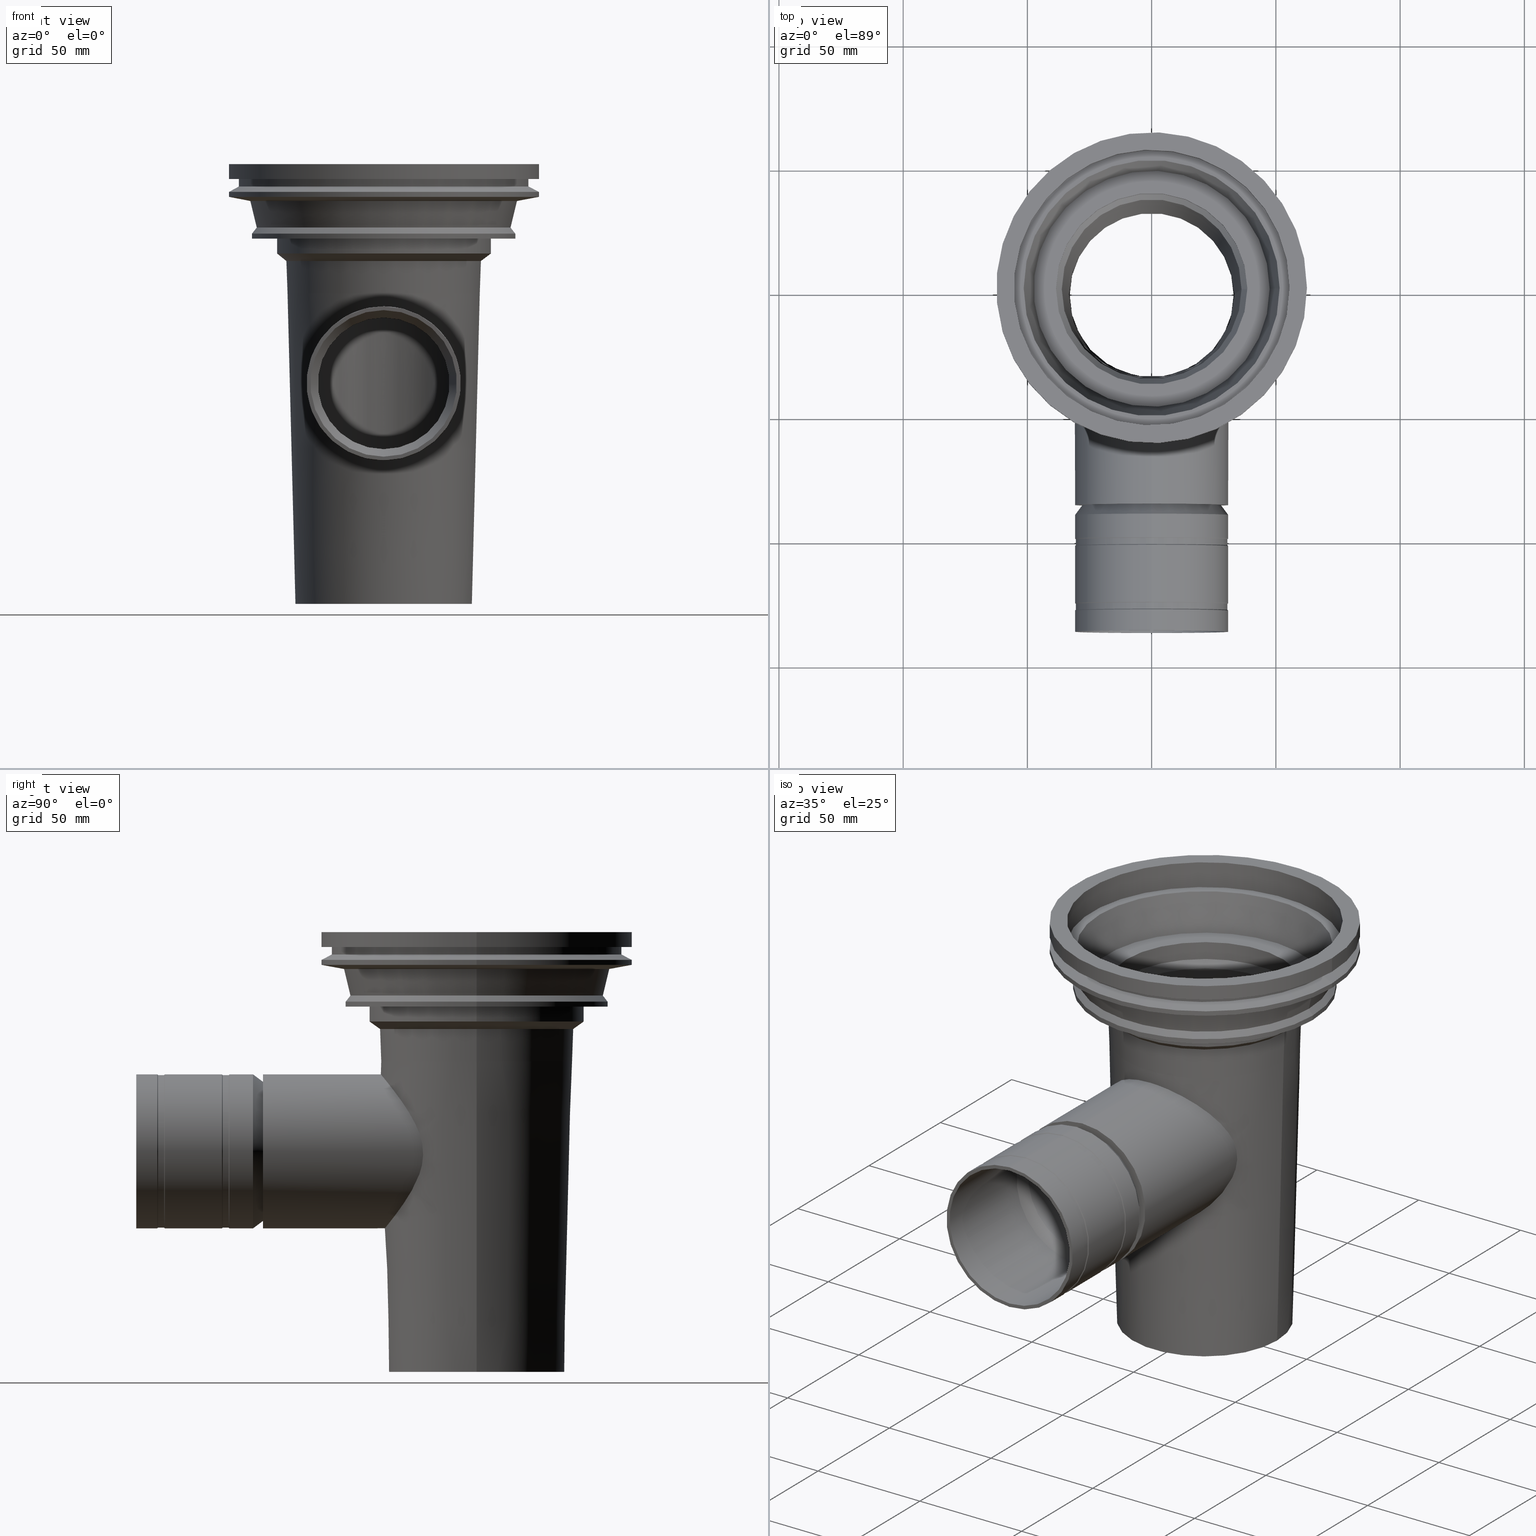
[diagram: canonical four-view strip — front | top / right | iso, engineering-drawing reading convention]
A machine part, canonical four-view strip (front | top / right | iso — engineering-drawing reading convention). The complete STEP part file that produces these views, byte-faithful:
ISO-10303-21;
HEADER;
/* Generated by software containing ST-Developer
 * from STEP Tools, Inc. (www.steptools.com) 
 */
/* OPTION: using custom renumber hook */

FILE_DESCRIPTION(
/* description */ ('STEP AP214'),
/* implementation_level */ '2;1');

FILE_NAME(
/* name */ '482085001(1)',
/* time_stamp */ '2022-12-23T08:20:40+01:00',
/* author */ ('License CC BY-ND 4.0'),
/* organization */ ('CADENAS'),
/* preprocessor_version */ 'ST-DEVELOPER v18.102',
/* originating_system */ 'PARTsolutions',
/* authorisation */ '  ');

FILE_SCHEMA (('AUTOMOTIVE_DESIGN {1 0 10303 214 3 1 1}'));
ENDSEC;

DATA;
#10=PROPERTY_DEFINITION_REPRESENTATION(#14,#12);
#11=PROPERTY_DEFINITION_REPRESENTATION(#15,#13);
#12=REPRESENTATION('',(#16),#986);
#13=REPRESENTATION('',(#17),#986);
#14=PROPERTY_DEFINITION('pmi validation property','',#991);
#15=PROPERTY_DEFINITION('pmi validation property','',#991);
#16=VALUE_REPRESENTATION_ITEM('number of annotations',COUNT_MEASURE(0.));
#17=VALUE_REPRESENTATION_ITEM('number of views',COUNT_MEASURE(0.));
#18=SHAPE_REPRESENTATION_RELATIONSHIP('','',#502,#19);
#19=ADVANCED_BREP_SHAPE_REPRESENTATION('',(#500),#986);
#20=PLANE('',#518);
#21=PLANE('',#525);
#22=PLANE('',#529);
#23=PLANE('',#533);
#24=PLANE('',#537);
#25=PLANE('',#553);
#26=PLANE('',#560);
#27=PLANE('',#564);
#28=PLANE('',#572);
#29=CONICAL_SURFACE('',#512,33.0020779252894,0.0214151899219702);
#30=CONICAL_SURFACE('',#515,38.6793859391097,0.0254294472015564);
#31=CONICAL_SURFACE('',#519,35.6793859584494,0.035691983203284);
#32=CONICAL_SURFACE('',#521,36.1755015473275,0.643502895210306);
#33=CONICAL_SURFACE('',#527,47.4999181723626,0.237521857903909);
#34=CONICAL_SURFACE('',#541,58.252,1.09597950378984);
#35=CONICAL_SURFACE('',#545,62.5,1.3848314949949);
#36=CONICAL_SURFACE('',#547,53.6550744100284,0.237521857903908);
#37=CONICAL_SURFACE('',#549,51.0668891155031,0.665808203050796);
#38=CONICAL_SURFACE('',#557,43.145,0.927293431584588);
#39=CONICAL_SURFACE('',#559,39.143539336086,0.0356919832032839);
#40=CONICAL_SURFACE('',#568,29.5,0.643502895210311);
#41=CONICAL_SURFACE('',#576,28.,0.643502895210311);
#42=CONICAL_SURFACE('',#577,30.7,0.876068018038586);
#43=CONICAL_SURFACE('',#579,34.,0.876068018038613);
#44=CONICAL_SURFACE('',#582,30.7,0.876068018038586);
#45=CONICAL_SURFACE('',#584,34.,0.87606801803861);
#46=B_SPLINE_CURVE_WITH_KNOTS('',3,(#767,#768,#769,#770,#771,#772,#773,
#774,#775,#776,#777,#778,#779,#780,#781,#782,#783,#784,#785,#786,#787,#788,
#789,#790,#791,#792,#793,#794,#795,#796,#797,#798,#799,#800,#801,#802,#803,
#804,#805,#806,#807,#808,#809,#810,#811,#812,#813,#814,#815),
 .UNSPECIFIED.,.T.,.F.,(1,1,1,1,1,1,1,1,1,1,1,1,1,1,1,1,1,1,1,1,1,1,1,1,
1,1,1,1,1,1,1,1,1,1,1,1,1,1,1,1,1,1,1,1,1,1,1,1,1,1,1,1,1),(-0.0115909098213004,
-0.00869318236597527,-0.00579545491065017,0.,0.00579545491065017,0.0115909098213003,
0.0173863647319505,0.0231818196426007,0.0289772745532509,0.031875002008576,
0.034772729463901,0.0405681843745512,0.0463636392852014,0.0521590941958516,
0.0579545491065017,0.0608522765618268,0.0637500040171519,0.0695454589278021,
0.0724431863831272,0.0753409138384523,0.0811363687491024,0.0840340962044275,
0.0869318236597526,0.0927272785704028,0.098522733481053,0.101420460936378,
0.104318188391703,0.107215915847028,0.110113643302353,0.113011370757678,
0.115909098213003,0.118806825668329,0.121704553123654,0.127500008034304,
0.130397735489629,0.133295462944954,0.139090917855604,0.141988645310929,
0.144886372766254,0.147784100221579,0.150681827676905,0.15357955513223,
0.156477282587555,0.162272737498205,0.16517046495353,0.168068192408855,
0.173863647319505,0.17676137477483,0.179659102230155,0.185454557140806,
0.191250012051456,0.197045466962106,0.202840921872756),.UNSPECIFIED.);
#47=B_SPLINE_CURVE_WITH_KNOTS('',3,(#827,#828,#829,#830,#831,#832,#833,
#834,#835,#836,#837,#838,#839,#840,#841,#842,#843,#844,#845,#846,#847,#848,
#849,#850,#851,#852,#853,#854,#855,#856,#857,#858,#859,#860,#861,#862,#863,
#864,#865,#866,#867,#868,#869,#870,#871,#872,#873,#874,#875,#876,#877,#878,
#879,#880),.UNSPECIFIED.,.T.,.F.,(1,1,1,1,1,1,1,1,1,1,1,1,1,1,1,1,1,1,1,
1,1,1,1,1,1,1,1,1,1,1,1,1,1,1,1,1,1,1,1,1,1,1,1,1,1,1,1,1,1,1,1,1,1,1,1,
1,1,1),(-0.0128925396919072,-0.00644626984595356,-0.00322313492297679,0.,
0.00644626984595357,0.0128925396919071,0.0193388095378607,0.0225619444608375,
0.0257850793838143,0.0322313492297679,0.0354544841527446,0.0386776190757214,
0.045123888921675,0.0483470238446518,0.0515701587676286,0.0547932936906054,
0.0580164286135821,0.0612395635365589,0.0644626984595357,0.0709089683054893,
0.0741321032284661,0.0773552381514429,0.0805783730744196,0.0838015079973964,
0.0870246429203732,0.09024777784335,0.0966940476893036,0.0999171826122804,
0.103140317535257,0.109586587381211,0.112809722304187,0.116032857227164,
0.122479127073118,0.125702261996095,0.128925396919071,0.135371666765025,
0.138594801688002,0.141817936610979,0.148264206456932,0.151487341379909,
0.154710476302886,0.161156746148839,0.164379881071816,0.167603015994793,
0.17082615091777,0.174049285840746,0.177272420763723,0.1804955556867,0.183718690609677,
0.186941825532654,0.19016496045563,0.193388095378607,0.199834365224561,
0.203057500147537,0.206280635070514,0.212726904916468,0.219173174762421,
0.225619444608375),.UNSPECIFIED.);
#48=ORIENTED_EDGE('',*,*,#134,.F.);
#49=ORIENTED_EDGE('',*,*,#135,.F.);
#50=ORIENTED_EDGE('',*,*,#136,.F.);
#51=ORIENTED_EDGE('',*,*,#137,.F.);
#52=ORIENTED_EDGE('',*,*,#138,.T.);
#53=ORIENTED_EDGE('',*,*,#139,.F.);
#54=ORIENTED_EDGE('',*,*,#140,.T.);
#55=ORIENTED_EDGE('',*,*,#141,.F.);
#56=ORIENTED_EDGE('',*,*,#138,.F.);
#57=ORIENTED_EDGE('',*,*,#142,.T.);
#58=ORIENTED_EDGE('',*,*,#143,.F.);
#59=ORIENTED_EDGE('',*,*,#144,.F.);
#60=ORIENTED_EDGE('',*,*,#141,.T.);
#61=ORIENTED_EDGE('',*,*,#142,.F.);
#62=ORIENTED_EDGE('',*,*,#145,.T.);
#63=ORIENTED_EDGE('',*,*,#140,.F.);
#64=ORIENTED_EDGE('',*,*,#146,.T.);
#65=ORIENTED_EDGE('',*,*,#145,.F.);
#66=ORIENTED_EDGE('',*,*,#147,.T.);
#67=ORIENTED_EDGE('',*,*,#146,.F.);
#68=ORIENTED_EDGE('',*,*,#148,.T.);
#69=ORIENTED_EDGE('',*,*,#147,.F.);
#70=ORIENTED_EDGE('',*,*,#149,.T.);
#71=ORIENTED_EDGE('',*,*,#148,.F.);
#72=ORIENTED_EDGE('',*,*,#150,.T.);
#73=ORIENTED_EDGE('',*,*,#149,.F.);
#74=ORIENTED_EDGE('',*,*,#151,.T.);
#75=ORIENTED_EDGE('',*,*,#150,.F.);
#76=ORIENTED_EDGE('',*,*,#152,.T.);
#77=ORIENTED_EDGE('',*,*,#151,.F.);
#78=ORIENTED_EDGE('',*,*,#153,.T.);
#79=ORIENTED_EDGE('',*,*,#152,.F.);
#80=ORIENTED_EDGE('',*,*,#154,.T.);
#81=ORIENTED_EDGE('',*,*,#153,.F.);
#82=ORIENTED_EDGE('',*,*,#155,.T.);
#83=ORIENTED_EDGE('',*,*,#154,.F.);
#84=ORIENTED_EDGE('',*,*,#156,.T.);
#85=ORIENTED_EDGE('',*,*,#155,.F.);
#86=ORIENTED_EDGE('',*,*,#157,.T.);
#87=ORIENTED_EDGE('',*,*,#156,.F.);
#88=ORIENTED_EDGE('',*,*,#158,.T.);
#89=ORIENTED_EDGE('',*,*,#157,.F.);
#90=ORIENTED_EDGE('',*,*,#159,.T.);
#91=ORIENTED_EDGE('',*,*,#158,.F.);
#92=ORIENTED_EDGE('',*,*,#160,.T.);
#93=ORIENTED_EDGE('',*,*,#159,.F.);
#94=ORIENTED_EDGE('',*,*,#161,.T.);
#95=ORIENTED_EDGE('',*,*,#160,.F.);
#96=ORIENTED_EDGE('',*,*,#162,.T.);
#97=ORIENTED_EDGE('',*,*,#161,.F.);
#98=ORIENTED_EDGE('',*,*,#163,.T.);
#99=ORIENTED_EDGE('',*,*,#162,.F.);
#100=ORIENTED_EDGE('',*,*,#164,.T.);
#101=ORIENTED_EDGE('',*,*,#163,.F.);
#102=ORIENTED_EDGE('',*,*,#144,.T.);
#103=ORIENTED_EDGE('',*,*,#164,.F.);
#104=ORIENTED_EDGE('',*,*,#165,.T.);
#105=ORIENTED_EDGE('',*,*,#166,.F.);
#106=ORIENTED_EDGE('',*,*,#166,.T.);
#107=ORIENTED_EDGE('',*,*,#143,.T.);
#108=ORIENTED_EDGE('',*,*,#139,.T.);
#109=ORIENTED_EDGE('',*,*,#167,.F.);
#110=ORIENTED_EDGE('',*,*,#167,.T.);
#111=ORIENTED_EDGE('',*,*,#168,.F.);
#112=ORIENTED_EDGE('',*,*,#168,.T.);
#113=ORIENTED_EDGE('',*,*,#169,.F.);
#114=ORIENTED_EDGE('',*,*,#169,.T.);
#115=ORIENTED_EDGE('',*,*,#170,.F.);
#116=ORIENTED_EDGE('',*,*,#170,.T.);
#117=ORIENTED_EDGE('',*,*,#171,.F.);
#118=ORIENTED_EDGE('',*,*,#171,.T.);
#119=ORIENTED_EDGE('',*,*,#172,.F.);
#120=ORIENTED_EDGE('',*,*,#135,.T.);
#121=ORIENTED_EDGE('',*,*,#165,.F.);
#122=ORIENTED_EDGE('',*,*,#136,.T.);
#123=ORIENTED_EDGE('',*,*,#173,.T.);
#124=ORIENTED_EDGE('',*,*,#174,.F.);
#125=ORIENTED_EDGE('',*,*,#172,.T.);
#126=ORIENTED_EDGE('',*,*,#173,.F.);
#127=ORIENTED_EDGE('',*,*,#174,.T.);
#128=ORIENTED_EDGE('',*,*,#134,.T.);
#129=ORIENTED_EDGE('',*,*,#175,.T.);
#130=ORIENTED_EDGE('',*,*,#176,.F.);
#131=ORIENTED_EDGE('',*,*,#137,.T.);
#132=ORIENTED_EDGE('',*,*,#175,.F.);
#133=ORIENTED_EDGE('',*,*,#176,.T.);
#134=EDGE_CURVE('',#177,#177,#220,.F.);
#135=EDGE_CURVE('',#178,#178,#221,.T.);
#136=EDGE_CURVE('',#179,#179,#222,.F.);
#137=EDGE_CURVE('',#180,#180,#223,.F.);
#138=EDGE_CURVE('',#181,#181,#46,.T.);
#139=EDGE_CURVE('',#182,#182,#224,.T.);
#140=EDGE_CURVE('',#183,#183,#225,.T.);
#141=EDGE_CURVE('',#184,#184,#226,.T.);
#142=EDGE_CURVE('',#185,#185,#227,.T.);
#143=EDGE_CURVE('',#186,#186,#47,.T.);
#144=EDGE_CURVE('',#187,#187,#228,.T.);
#145=EDGE_CURVE('',#188,#188,#229,.T.);
#146=EDGE_CURVE('',#189,#189,#230,.T.);
#147=EDGE_CURVE('',#190,#190,#231,.T.);
#148=EDGE_CURVE('',#191,#191,#232,.T.);
#149=EDGE_CURVE('',#192,#192,#233,.T.);
#150=EDGE_CURVE('',#193,#193,#234,.T.);
#151=EDGE_CURVE('',#194,#194,#235,.T.);
#152=EDGE_CURVE('',#195,#195,#236,.T.);
#153=EDGE_CURVE('',#196,#196,#237,.T.);
#154=EDGE_CURVE('',#197,#197,#238,.T.);
#155=EDGE_CURVE('',#198,#198,#239,.T.);
#156=EDGE_CURVE('',#199,#199,#240,.T.);
#157=EDGE_CURVE('',#200,#200,#241,.T.);
#158=EDGE_CURVE('',#201,#201,#242,.T.);
#159=EDGE_CURVE('',#202,#202,#243,.T.);
#160=EDGE_CURVE('',#203,#203,#244,.T.);
#161=EDGE_CURVE('',#204,#204,#245,.T.);
#162=EDGE_CURVE('',#205,#205,#246,.T.);
#163=EDGE_CURVE('',#206,#206,#247,.T.);
#164=EDGE_CURVE('',#207,#207,#248,.T.);
#165=EDGE_CURVE('',#208,#208,#249,.T.);
#166=EDGE_CURVE('',#209,#209,#250,.T.);
#167=EDGE_CURVE('',#210,#210,#251,.T.);
#168=EDGE_CURVE('',#211,#211,#252,.T.);
#169=EDGE_CURVE('',#212,#212,#253,.T.);
#170=EDGE_CURVE('',#213,#213,#254,.T.);
#171=EDGE_CURVE('',#214,#214,#255,.T.);
#172=EDGE_CURVE('',#215,#215,#256,.F.);
#173=EDGE_CURVE('',#216,#216,#257,.T.);
#174=EDGE_CURVE('',#217,#217,#258,.T.);
#175=EDGE_CURVE('',#218,#218,#259,.T.);
#176=EDGE_CURVE('',#219,#219,#260,.T.);
#177=VERTEX_POINT('',#758);
#178=VERTEX_POINT('',#760);
#179=VERTEX_POINT('',#763);
#180=VERTEX_POINT('',#765);
#181=VERTEX_POINT('',#816);
#182=VERTEX_POINT('',#818);
#183=VERTEX_POINT('',#821);
#184=VERTEX_POINT('',#823);
#185=VERTEX_POINT('',#826);
#186=VERTEX_POINT('',#881);
#187=VERTEX_POINT('',#883);
#188=VERTEX_POINT('',#887);
#189=VERTEX_POINT('',#890);
#190=VERTEX_POINT('',#893);
#191=VERTEX_POINT('',#896);
#192=VERTEX_POINT('',#899);
#193=VERTEX_POINT('',#902);
#194=VERTEX_POINT('',#905);
#195=VERTEX_POINT('',#908);
#196=VERTEX_POINT('',#911);
#197=VERTEX_POINT('',#914);
#198=VERTEX_POINT('',#917);
#199=VERTEX_POINT('',#920);
#200=VERTEX_POINT('',#923);
#201=VERTEX_POINT('',#926);
#202=VERTEX_POINT('',#929);
#203=VERTEX_POINT('',#932);
#204=VERTEX_POINT('',#935);
#205=VERTEX_POINT('',#938);
#206=VERTEX_POINT('',#941);
#207=VERTEX_POINT('',#944);
#208=VERTEX_POINT('',#948);
#209=VERTEX_POINT('',#950);
#210=VERTEX_POINT('',#954);
#211=VERTEX_POINT('',#957);
#212=VERTEX_POINT('',#960);
#213=VERTEX_POINT('',#963);
#214=VERTEX_POINT('',#966);
#215=VERTEX_POINT('',#969);
#216=VERTEX_POINT('',#973);
#217=VERTEX_POINT('',#976);
#218=VERTEX_POINT('',#980);
#219=VERTEX_POINT('',#983);
#220=CIRCLE('',#505,31.);
#221=CIRCLE('',#506,31.);
#222=CIRCLE('',#508,31.);
#223=CIRCLE('',#509,31.);
#224=CIRCLE('',#511,28.);
#225=CIRCLE('',#513,35.6793859584494);
#226=CIRCLE('',#514,33.0020779252894);
#227=CIRCLE('',#516,35.5000196897832);
#228=CIRCLE('',#517,38.6793859391097);
#229=CIRCLE('',#520,36.1755015473275);
#230=CIRCLE('',#522,38.505);
#231=CIRCLE('',#524,38.505);
#232=CIRCLE('',#526,47.4999181723626);
#233=CIRCLE('',#528,51.5);
#234=CIRCLE('',#530,55.5);
#235=CIRCLE('',#532,55.5);
#236=CIRCLE('',#534,62.5);
#237=CIRCLE('',#536,62.5);
#238=CIRCLE('',#538,58.252);
#239=CIRCLE('',#540,58.252);
#240=CIRCLE('',#542,62.5);
#241=CIRCLE('',#544,62.5);
#242=CIRCLE('',#546,53.6550744100284);
#243=CIRCLE('',#548,51.0668891155031);
#244=CIRCLE('',#550,53.);
#245=CIRCLE('',#552,53.);
#246=CIRCLE('',#554,43.145);
#247=CIRCLE('',#556,43.145);
#248=CIRCLE('',#558,39.143539336086);
#249=CIRCLE('',#561,28.);
#250=CIRCLE('',#562,31.);
#251=CIRCLE('',#565,26.5);
#252=CIRCLE('',#567,26.5);
#253=CIRCLE('',#569,29.5);
#254=CIRCLE('',#571,29.5);
#255=CIRCLE('',#573,31.);
#256=CIRCLE('',#575,31.);
#257=CIRCLE('',#578,30.7);
#258=CIRCLE('',#580,30.7);
#259=CIRCLE('',#583,30.7);
#260=CIRCLE('',#585,30.7);
#261=EDGE_LOOP('',(#48));
#262=EDGE_LOOP('',(#49));
#263=EDGE_LOOP('',(#50));
#264=EDGE_LOOP('',(#51));
#265=EDGE_LOOP('',(#52));
#266=EDGE_LOOP('',(#53));
#267=EDGE_LOOP('',(#54));
#268=EDGE_LOOP('',(#55));
#269=EDGE_LOOP('',(#56));
#270=EDGE_LOOP('',(#57));
#271=EDGE_LOOP('',(#58));
#272=EDGE_LOOP('',(#59));
#273=EDGE_LOOP('',(#60));
#274=EDGE_LOOP('',(#61));
#275=EDGE_LOOP('',(#62));
#276=EDGE_LOOP('',(#63));
#277=EDGE_LOOP('',(#64));
#278=EDGE_LOOP('',(#65));
#279=EDGE_LOOP('',(#66));
#280=EDGE_LOOP('',(#67));
#281=EDGE_LOOP('',(#68));
#282=EDGE_LOOP('',(#69));
#283=EDGE_LOOP('',(#70));
#284=EDGE_LOOP('',(#71));
#285=EDGE_LOOP('',(#72));
#286=EDGE_LOOP('',(#73));
#287=EDGE_LOOP('',(#74));
#288=EDGE_LOOP('',(#75));
#289=EDGE_LOOP('',(#76));
#290=EDGE_LOOP('',(#77));
#291=EDGE_LOOP('',(#78));
#292=EDGE_LOOP('',(#79));
#293=EDGE_LOOP('',(#80));
#294=EDGE_LOOP('',(#81));
#295=EDGE_LOOP('',(#82));
#296=EDGE_LOOP('',(#83));
#297=EDGE_LOOP('',(#84));
#298=EDGE_LOOP('',(#85));
#299=EDGE_LOOP('',(#86));
#300=EDGE_LOOP('',(#87));
#301=EDGE_LOOP('',(#88));
#302=EDGE_LOOP('',(#89));
#303=EDGE_LOOP('',(#90));
#304=EDGE_LOOP('',(#91));
#305=EDGE_LOOP('',(#92));
#306=EDGE_LOOP('',(#93));
#307=EDGE_LOOP('',(#94));
#308=EDGE_LOOP('',(#95));
#309=EDGE_LOOP('',(#96));
#310=EDGE_LOOP('',(#97));
#311=EDGE_LOOP('',(#98));
#312=EDGE_LOOP('',(#99));
#313=EDGE_LOOP('',(#100));
#314=EDGE_LOOP('',(#101));
#315=EDGE_LOOP('',(#102));
#316=EDGE_LOOP('',(#103));
#317=EDGE_LOOP('',(#104));
#318=EDGE_LOOP('',(#105));
#319=EDGE_LOOP('',(#106));
#320=EDGE_LOOP('',(#107));
#321=EDGE_LOOP('',(#108));
#322=EDGE_LOOP('',(#109));
#323=EDGE_LOOP('',(#110));
#324=EDGE_LOOP('',(#111));
#325=EDGE_LOOP('',(#112));
#326=EDGE_LOOP('',(#113));
#327=EDGE_LOOP('',(#114));
#328=EDGE_LOOP('',(#115));
#329=EDGE_LOOP('',(#116));
#330=EDGE_LOOP('',(#117));
#331=EDGE_LOOP('',(#118));
#332=EDGE_LOOP('',(#119));
#333=EDGE_LOOP('',(#120));
#334=EDGE_LOOP('',(#121));
#335=EDGE_LOOP('',(#122));
#336=EDGE_LOOP('',(#123));
#337=EDGE_LOOP('',(#124));
#338=EDGE_LOOP('',(#125));
#339=EDGE_LOOP('',(#126));
#340=EDGE_LOOP('',(#127));
#341=EDGE_LOOP('',(#128));
#342=EDGE_LOOP('',(#129));
#343=EDGE_LOOP('',(#130));
#344=EDGE_LOOP('',(#131));
#345=EDGE_LOOP('',(#132));
#346=EDGE_LOOP('',(#133));
#347=FACE_BOUND('',#261,.T.);
#348=FACE_BOUND('',#262,.T.);
#349=FACE_BOUND('',#263,.T.);
#350=FACE_BOUND('',#264,.T.);
#351=FACE_BOUND('',#265,.T.);
#352=FACE_BOUND('',#266,.T.);
#353=FACE_BOUND('',#267,.T.);
#354=FACE_BOUND('',#268,.T.);
#355=FACE_BOUND('',#269,.T.);
#356=FACE_BOUND('',#270,.T.);
#357=FACE_BOUND('',#271,.T.);
#358=FACE_BOUND('',#272,.T.);
#359=FACE_BOUND('',#273,.T.);
#360=FACE_BOUND('',#274,.T.);
#361=FACE_BOUND('',#275,.T.);
#362=FACE_BOUND('',#276,.T.);
#363=FACE_BOUND('',#277,.T.);
#364=FACE_BOUND('',#278,.T.);
#365=FACE_BOUND('',#279,.T.);
#366=FACE_BOUND('',#280,.T.);
#367=FACE_BOUND('',#281,.T.);
#368=FACE_BOUND('',#282,.T.);
#369=FACE_BOUND('',#283,.T.);
#370=FACE_BOUND('',#284,.T.);
#371=FACE_BOUND('',#285,.T.);
#372=FACE_BOUND('',#286,.T.);
#373=FACE_BOUND('',#287,.T.);
#374=FACE_BOUND('',#288,.T.);
#375=FACE_BOUND('',#289,.T.);
#376=FACE_BOUND('',#290,.T.);
#377=FACE_BOUND('',#291,.T.);
#378=FACE_BOUND('',#292,.T.);
#379=FACE_BOUND('',#293,.T.);
#380=FACE_BOUND('',#294,.T.);
#381=FACE_BOUND('',#295,.T.);
#382=FACE_BOUND('',#296,.T.);
#383=FACE_BOUND('',#297,.T.);
#384=FACE_BOUND('',#298,.T.);
#385=FACE_BOUND('',#299,.T.);
#386=FACE_BOUND('',#300,.T.);
#387=FACE_BOUND('',#301,.T.);
#388=FACE_BOUND('',#302,.T.);
#389=FACE_BOUND('',#303,.T.);
#390=FACE_BOUND('',#304,.T.);
#391=FACE_BOUND('',#305,.T.);
#392=FACE_BOUND('',#306,.T.);
#393=FACE_BOUND('',#307,.T.);
#394=FACE_BOUND('',#308,.T.);
#395=FACE_BOUND('',#309,.T.);
#396=FACE_BOUND('',#310,.T.);
#397=FACE_BOUND('',#311,.T.);
#398=FACE_BOUND('',#312,.T.);
#399=FACE_BOUND('',#313,.T.);
#400=FACE_BOUND('',#314,.T.);
#401=FACE_BOUND('',#315,.T.);
#402=FACE_BOUND('',#316,.T.);
#403=FACE_BOUND('',#317,.T.);
#404=FACE_BOUND('',#318,.T.);
#405=FACE_BOUND('',#319,.T.);
#406=FACE_BOUND('',#320,.T.);
#407=FACE_BOUND('',#321,.T.);
#408=FACE_BOUND('',#322,.T.);
#409=FACE_BOUND('',#323,.T.);
#410=FACE_BOUND('',#324,.T.);
#411=FACE_BOUND('',#325,.T.);
#412=FACE_BOUND('',#326,.T.);
#413=FACE_BOUND('',#327,.T.);
#414=FACE_BOUND('',#328,.T.);
#415=FACE_BOUND('',#329,.T.);
#416=FACE_BOUND('',#330,.T.);
#417=FACE_BOUND('',#331,.T.);
#418=FACE_BOUND('',#332,.T.);
#419=FACE_BOUND('',#333,.T.);
#420=FACE_BOUND('',#334,.T.);
#421=FACE_BOUND('',#335,.T.);
#422=FACE_BOUND('',#336,.T.);
#423=FACE_BOUND('',#337,.T.);
#424=FACE_BOUND('',#338,.T.);
#425=FACE_BOUND('',#339,.T.);
#426=FACE_BOUND('',#340,.T.);
#427=FACE_BOUND('',#341,.T.);
#428=FACE_BOUND('',#342,.T.);
#429=FACE_BOUND('',#343,.T.);
#430=FACE_BOUND('',#344,.T.);
#431=FACE_BOUND('',#345,.T.);
#432=FACE_BOUND('',#346,.T.);
#433=CYLINDRICAL_SURFACE('',#504,31.);
#434=CYLINDRICAL_SURFACE('',#507,31.);
#435=CYLINDRICAL_SURFACE('',#510,28.);
#436=CYLINDRICAL_SURFACE('',#523,38.505);
#437=CYLINDRICAL_SURFACE('',#531,55.5);
#438=CYLINDRICAL_SURFACE('',#535,62.5);
#439=CYLINDRICAL_SURFACE('',#539,58.252);
#440=CYLINDRICAL_SURFACE('',#543,62.5);
#441=CYLINDRICAL_SURFACE('',#551,53.);
#442=CYLINDRICAL_SURFACE('',#555,43.145);
#443=CYLINDRICAL_SURFACE('',#563,31.);
#444=CYLINDRICAL_SURFACE('',#566,26.5);
#445=CYLINDRICAL_SURFACE('',#570,29.5);
#446=CYLINDRICAL_SURFACE('',#574,31.);
#447=CYLINDRICAL_SURFACE('',#581,30.7);
#448=CYLINDRICAL_SURFACE('',#586,30.7);
#449=ADVANCED_FACE('',(#347,#348),#433,.T.);
#450=ADVANCED_FACE('',(#349,#350),#434,.T.);
#451=ADVANCED_FACE('',(#351,#352),#435,.F.);
#452=ADVANCED_FACE('',(#353,#354,#355),#29,.F.);
#453=ADVANCED_FACE('',(#356,#357,#358),#30,.T.);
#454=ADVANCED_FACE('',(#359,#360),#20,.T.);
#455=ADVANCED_FACE('',(#361,#362),#31,.F.);
#456=ADVANCED_FACE('',(#363,#364),#32,.F.);
#457=ADVANCED_FACE('',(#365,#366),#436,.F.);
#458=ADVANCED_FACE('',(#367,#368),#21,.T.);
#459=ADVANCED_FACE('',(#369,#370),#33,.F.);
#460=ADVANCED_FACE('',(#371,#372),#22,.T.);
#461=ADVANCED_FACE('',(#373,#374),#437,.F.);
#462=ADVANCED_FACE('',(#375,#376),#23,.T.);
#463=ADVANCED_FACE('',(#377,#378),#438,.T.);
#464=ADVANCED_FACE('',(#379,#380),#24,.T.);
#465=ADVANCED_FACE('',(#381,#382),#439,.T.);
#466=ADVANCED_FACE('',(#383,#384),#34,.T.);
#467=ADVANCED_FACE('',(#385,#386),#440,.T.);
#468=ADVANCED_FACE('',(#387,#388),#35,.T.);
#469=ADVANCED_FACE('',(#389,#390),#36,.T.);
#470=ADVANCED_FACE('',(#391,#392),#37,.T.);
#471=ADVANCED_FACE('',(#393,#394),#441,.T.);
#472=ADVANCED_FACE('',(#395,#396),#25,.T.);
#473=ADVANCED_FACE('',(#397,#398),#442,.T.);
#474=ADVANCED_FACE('',(#399,#400),#38,.T.);
#475=ADVANCED_FACE('',(#401,#402),#39,.T.);
#476=ADVANCED_FACE('',(#403,#404),#26,.T.);
#477=ADVANCED_FACE('',(#405,#406),#443,.T.);
#478=ADVANCED_FACE('',(#407,#408),#27,.T.);
#479=ADVANCED_FACE('',(#409,#410),#444,.F.);
#480=ADVANCED_FACE('',(#411,#412),#40,.F.);
#481=ADVANCED_FACE('',(#413,#414),#445,.F.);
#482=ADVANCED_FACE('',(#415,#416),#28,.T.);
#483=ADVANCED_FACE('',(#417,#418),#446,.T.);
#484=ADVANCED_FACE('',(#419,#420),#41,.T.);
#485=ADVANCED_FACE('',(#421,#422),#42,.T.);
#486=ADVANCED_FACE('',(#423,#424),#43,.T.);
#487=ADVANCED_FACE('',(#425,#426),#447,.T.);
#488=ADVANCED_FACE('',(#427,#428),#44,.T.);
#489=ADVANCED_FACE('',(#429,#430),#45,.T.);
#490=ADVANCED_FACE('',(#431,#432),#448,.T.);
#491=CLOSED_SHELL('',(#449,#450,#451,#452,#453,#454,#455,#456,#457,#458,
#459,#460,#461,#462,#463,#464,#465,#466,#467,#468,#469,#470,#471,#472,#473,
#474,#475,#476,#477,#478,#479,#480,#481,#482,#483,#484,#485,#486,#487,#488,
#489,#490));
#492=STYLED_ITEM('',(#493),#500);
#493=PRESENTATION_STYLE_ASSIGNMENT((#494));
#494=SURFACE_STYLE_USAGE(.BOTH.,#495);
#495=SURFACE_SIDE_STYLE('',(#496));
#496=SURFACE_STYLE_FILL_AREA(#497);
#497=FILL_AREA_STYLE('',(#498));
#498=FILL_AREA_STYLE_COLOUR('',#499);
#499=COLOUR_RGB('',0.689999997615814,0.689999997615814,0.689999997615814);
#500=MANIFOLD_SOLID_BREP('482085001(1)',#491);
#501=SHAPE_DEFINITION_REPRESENTATION(#991,#502);
#502=SHAPE_REPRESENTATION('482085001(1)',(#503),#986);
#503=AXIS2_PLACEMENT_3D('',#755,#587,#588);
#504=AXIS2_PLACEMENT_3D('',#756,#589,#590);
#505=AXIS2_PLACEMENT_3D('',#757,#591,#592);
#506=AXIS2_PLACEMENT_3D('',#759,#593,#594);
#507=AXIS2_PLACEMENT_3D('',#761,#595,#596);
#508=AXIS2_PLACEMENT_3D('',#762,#597,#598);
#509=AXIS2_PLACEMENT_3D('',#764,#599,#600);
#510=AXIS2_PLACEMENT_3D('',#766,#601,#602);
#511=AXIS2_PLACEMENT_3D('',#817,#603,#604);
#512=AXIS2_PLACEMENT_3D('',#819,#605,#606);
#513=AXIS2_PLACEMENT_3D('',#820,#607,#608);
#514=AXIS2_PLACEMENT_3D('',#822,#609,#610);
#515=AXIS2_PLACEMENT_3D('',#824,#611,#612);
#516=AXIS2_PLACEMENT_3D('',#825,#613,#614);
#517=AXIS2_PLACEMENT_3D('',#882,#615,#616);
#518=AXIS2_PLACEMENT_3D('',#884,#617,#618);
#519=AXIS2_PLACEMENT_3D('',#885,#619,#620);
#520=AXIS2_PLACEMENT_3D('',#886,#621,#622);
#521=AXIS2_PLACEMENT_3D('',#888,#623,#624);
#522=AXIS2_PLACEMENT_3D('',#889,#625,#626);
#523=AXIS2_PLACEMENT_3D('',#891,#627,#628);
#524=AXIS2_PLACEMENT_3D('',#892,#629,#630);
#525=AXIS2_PLACEMENT_3D('',#894,#631,#632);
#526=AXIS2_PLACEMENT_3D('',#895,#633,#634);
#527=AXIS2_PLACEMENT_3D('',#897,#635,#636);
#528=AXIS2_PLACEMENT_3D('',#898,#637,#638);
#529=AXIS2_PLACEMENT_3D('',#900,#639,#640);
#530=AXIS2_PLACEMENT_3D('',#901,#641,#642);
#531=AXIS2_PLACEMENT_3D('',#903,#643,#644);
#532=AXIS2_PLACEMENT_3D('',#904,#645,#646);
#533=AXIS2_PLACEMENT_3D('',#906,#647,#648);
#534=AXIS2_PLACEMENT_3D('',#907,#649,#650);
#535=AXIS2_PLACEMENT_3D('',#909,#651,#652);
#536=AXIS2_PLACEMENT_3D('',#910,#653,#654);
#537=AXIS2_PLACEMENT_3D('',#912,#655,#656);
#538=AXIS2_PLACEMENT_3D('',#913,#657,#658);
#539=AXIS2_PLACEMENT_3D('',#915,#659,#660);
#540=AXIS2_PLACEMENT_3D('',#916,#661,#662);
#541=AXIS2_PLACEMENT_3D('',#918,#663,#664);
#542=AXIS2_PLACEMENT_3D('',#919,#665,#666);
#543=AXIS2_PLACEMENT_3D('',#921,#667,#668);
#544=AXIS2_PLACEMENT_3D('',#922,#669,#670);
#545=AXIS2_PLACEMENT_3D('',#924,#671,#672);
#546=AXIS2_PLACEMENT_3D('',#925,#673,#674);
#547=AXIS2_PLACEMENT_3D('',#927,#675,#676);
#548=AXIS2_PLACEMENT_3D('',#928,#677,#678);
#549=AXIS2_PLACEMENT_3D('',#930,#679,#680);
#550=AXIS2_PLACEMENT_3D('',#931,#681,#682);
#551=AXIS2_PLACEMENT_3D('',#933,#683,#684);
#552=AXIS2_PLACEMENT_3D('',#934,#685,#686);
#553=AXIS2_PLACEMENT_3D('',#936,#687,#688);
#554=AXIS2_PLACEMENT_3D('',#937,#689,#690);
#555=AXIS2_PLACEMENT_3D('',#939,#691,#692);
#556=AXIS2_PLACEMENT_3D('',#940,#693,#694);
#557=AXIS2_PLACEMENT_3D('',#942,#695,#696);
#558=AXIS2_PLACEMENT_3D('',#943,#697,#698);
#559=AXIS2_PLACEMENT_3D('',#945,#699,#700);
#560=AXIS2_PLACEMENT_3D('',#946,#701,#702);
#561=AXIS2_PLACEMENT_3D('',#947,#703,#704);
#562=AXIS2_PLACEMENT_3D('',#949,#705,#706);
#563=AXIS2_PLACEMENT_3D('',#951,#707,#708);
#564=AXIS2_PLACEMENT_3D('',#952,#709,#710);
#565=AXIS2_PLACEMENT_3D('',#953,#711,#712);
#566=AXIS2_PLACEMENT_3D('',#955,#713,#714);
#567=AXIS2_PLACEMENT_3D('',#956,#715,#716);
#568=AXIS2_PLACEMENT_3D('',#958,#717,#718);
#569=AXIS2_PLACEMENT_3D('',#959,#719,#720);
#570=AXIS2_PLACEMENT_3D('',#961,#721,#722);
#571=AXIS2_PLACEMENT_3D('',#962,#723,#724);
#572=AXIS2_PLACEMENT_3D('',#964,#725,#726);
#573=AXIS2_PLACEMENT_3D('',#965,#727,#728);
#574=AXIS2_PLACEMENT_3D('',#967,#729,#730);
#575=AXIS2_PLACEMENT_3D('',#968,#731,#732);
#576=AXIS2_PLACEMENT_3D('',#970,#733,#734);
#577=AXIS2_PLACEMENT_3D('',#971,#735,#736);
#578=AXIS2_PLACEMENT_3D('',#972,#737,#738);
#579=AXIS2_PLACEMENT_3D('',#974,#739,#740);
#580=AXIS2_PLACEMENT_3D('',#975,#741,#742);
#581=AXIS2_PLACEMENT_3D('',#977,#743,#744);
#582=AXIS2_PLACEMENT_3D('',#978,#745,#746);
#583=AXIS2_PLACEMENT_3D('',#979,#747,#748);
#584=AXIS2_PLACEMENT_3D('',#981,#749,#750);
#585=AXIS2_PLACEMENT_3D('',#982,#751,#752);
#586=AXIS2_PLACEMENT_3D('',#984,#753,#754);
#587=DIRECTION('',(0.,0.,1.));
#588=DIRECTION('',(1.,0.,0.));
#589=DIRECTION('',(0.,1.,0.));
#590=DIRECTION('',(0.,0.,1.));
#591=DIRECTION('',(0.,1.,0.));
#592=DIRECTION('',(0.,0.,1.));
#593=DIRECTION('',(0.,1.,0.));
#594=DIRECTION('',(0.,0.,1.));
#595=DIRECTION('',(0.,1.,0.));
#596=DIRECTION('',(0.,0.,1.));
#597=DIRECTION('',(0.,1.,0.));
#598=DIRECTION('',(0.,0.,1.));
#599=DIRECTION('',(0.,-1.,0.));
#600=DIRECTION('',(0.,0.,-1.));
#601=DIRECTION('',(0.,1.,0.));
#602=DIRECTION('',(0.,0.,1.));
#603=DIRECTION('',(0.,1.,0.));
#604=DIRECTION('',(0.,0.,1.));
#605=DIRECTION('',(0.,0.,1.));
#606=DIRECTION('',(1.,0.,0.));
#607=DIRECTION('',(0.,0.,1.));
#608=DIRECTION('',(1.,0.,0.));
#609=DIRECTION('',(0.,0.,1.));
#610=DIRECTION('',(1.,0.,0.));
#611=DIRECTION('',(0.,0.,1.));
#612=DIRECTION('',(1.,0.,0.));
#613=DIRECTION('',(0.,0.,1.));
#614=DIRECTION('',(1.,0.,0.));
#615=DIRECTION('',(0.,0.,1.));
#616=DIRECTION('',(1.,0.,0.));
#617=DIRECTION('',(0.,0.,-1.));
#618=DIRECTION('',(-1.,0.,0.));
#619=DIRECTION('',(0.,0.,1.));
#620=DIRECTION('',(1.,0.,0.));
#621=DIRECTION('',(0.,0.,1.));
#622=DIRECTION('',(1.,0.,0.));
#623=DIRECTION('',(0.,0.,1.));
#624=DIRECTION('',(1.,0.,0.));
#625=DIRECTION('',(0.,0.,1.));
#626=DIRECTION('',(1.,0.,0.));
#627=DIRECTION('',(0.,0.,1.));
#628=DIRECTION('',(1.,0.,0.));
#629=DIRECTION('',(0.,0.,1.));
#630=DIRECTION('',(1.,0.,0.));
#631=DIRECTION('',(0.,0.,1.));
#632=DIRECTION('',(1.,0.,0.));
#633=DIRECTION('',(0.,0.,1.));
#634=DIRECTION('',(1.,0.,0.));
#635=DIRECTION('',(0.,0.,1.));
#636=DIRECTION('',(1.,0.,0.));
#637=DIRECTION('',(0.,0.,1.));
#638=DIRECTION('',(1.,0.,0.));
#639=DIRECTION('',(0.,0.,1.));
#640=DIRECTION('',(1.,0.,0.));
#641=DIRECTION('',(0.,0.,1.));
#642=DIRECTION('',(1.,0.,0.));
#643=DIRECTION('',(0.,0.,1.));
#644=DIRECTION('',(1.,0.,0.));
#645=DIRECTION('',(0.,0.,1.));
#646=DIRECTION('',(1.,0.,0.));
#647=DIRECTION('',(0.,0.,1.));
#648=DIRECTION('',(1.,0.,0.));
#649=DIRECTION('',(0.,0.,1.));
#650=DIRECTION('',(1.,0.,0.));
#651=DIRECTION('',(0.,0.,1.));
#652=DIRECTION('',(1.,0.,0.));
#653=DIRECTION('',(0.,0.,1.));
#654=DIRECTION('',(1.,0.,0.));
#655=DIRECTION('',(0.,0.,-1.));
#656=DIRECTION('',(-1.,0.,0.));
#657=DIRECTION('',(0.,0.,1.));
#658=DIRECTION('',(1.,0.,0.));
#659=DIRECTION('',(0.,0.,1.));
#660=DIRECTION('',(1.,0.,0.));
#661=DIRECTION('',(0.,0.,1.));
#662=DIRECTION('',(1.,0.,0.));
#663=DIRECTION('',(0.,0.,-1.));
#664=DIRECTION('',(-1.,0.,0.));
#665=DIRECTION('',(0.,0.,1.));
#666=DIRECTION('',(1.,0.,0.));
#667=DIRECTION('',(0.,0.,1.));
#668=DIRECTION('',(1.,0.,0.));
#669=DIRECTION('',(0.,0.,1.));
#670=DIRECTION('',(1.,0.,0.));
#671=DIRECTION('',(0.,0.,1.));
#672=DIRECTION('',(1.,0.,0.));
#673=DIRECTION('',(0.,0.,1.));
#674=DIRECTION('',(1.,0.,0.));
#675=DIRECTION('',(0.,0.,1.));
#676=DIRECTION('',(1.,0.,0.));
#677=DIRECTION('',(0.,0.,1.));
#678=DIRECTION('',(1.,0.,0.));
#679=DIRECTION('',(0.,0.,-1.));
#680=DIRECTION('',(-1.,0.,0.));
#681=DIRECTION('',(0.,0.,1.));
#682=DIRECTION('',(1.,0.,0.));
#683=DIRECTION('',(0.,0.,1.));
#684=DIRECTION('',(1.,0.,0.));
#685=DIRECTION('',(0.,0.,1.));
#686=DIRECTION('',(1.,0.,0.));
#687=DIRECTION('',(0.,0.,-1.));
#688=DIRECTION('',(-1.,0.,0.));
#689=DIRECTION('',(0.,0.,1.));
#690=DIRECTION('',(1.,0.,0.));
#691=DIRECTION('',(0.,0.,1.));
#692=DIRECTION('',(1.,0.,0.));
#693=DIRECTION('',(0.,0.,1.));
#694=DIRECTION('',(1.,0.,0.));
#695=DIRECTION('',(0.,0.,1.));
#696=DIRECTION('',(1.,0.,0.));
#697=DIRECTION('',(0.,0.,1.));
#698=DIRECTION('',(1.,0.,0.));
#699=DIRECTION('',(0.,0.,1.));
#700=DIRECTION('',(1.,0.,0.));
#701=DIRECTION('',(0.,-1.,0.));
#702=DIRECTION('',(0.,0.,-1.));
#703=DIRECTION('',(0.,1.,0.));
#704=DIRECTION('',(0.,0.,1.));
#705=DIRECTION('',(0.,1.,0.));
#706=DIRECTION('',(0.,0.,1.));
#707=DIRECTION('',(0.,1.,0.));
#708=DIRECTION('',(0.,0.,1.));
#709=DIRECTION('',(0.,1.,0.));
#710=DIRECTION('',(0.,0.,1.));
#711=DIRECTION('',(0.,1.,0.));
#712=DIRECTION('',(0.,0.,1.));
#713=DIRECTION('',(0.,1.,0.));
#714=DIRECTION('',(0.,0.,1.));
#715=DIRECTION('',(0.,1.,0.));
#716=DIRECTION('',(0.,0.,1.));
#717=DIRECTION('',(0.,-1.,0.));
#718=DIRECTION('',(0.,0.,-1.));
#719=DIRECTION('',(0.,1.,0.));
#720=DIRECTION('',(0.,0.,1.));
#721=DIRECTION('',(0.,1.,0.));
#722=DIRECTION('',(0.,0.,1.));
#723=DIRECTION('',(0.,1.,0.));
#724=DIRECTION('',(0.,0.,1.));
#725=DIRECTION('',(0.,-1.,0.));
#726=DIRECTION('',(0.,0.,-1.));
#727=DIRECTION('',(0.,1.,0.));
#728=DIRECTION('',(0.,0.,1.));
#729=DIRECTION('',(0.,1.,0.));
#730=DIRECTION('',(0.,0.,1.));
#731=DIRECTION('',(0.,-1.,0.));
#732=DIRECTION('',(0.,0.,-1.));
#733=DIRECTION('',(0.,-1.,0.));
#734=DIRECTION('',(0.,0.,-1.));
#735=DIRECTION('',(0.,1.,0.));
#736=DIRECTION('',(0.,0.,1.));
#737=DIRECTION('',(0.,1.,0.));
#738=DIRECTION('',(0.,0.,1.));
#739=DIRECTION('',(0.,-1.,0.));
#740=DIRECTION('',(0.,0.,-1.));
#741=DIRECTION('',(0.,1.,0.));
#742=DIRECTION('',(0.,0.,1.));
#743=DIRECTION('',(0.,1.,0.));
#744=DIRECTION('',(0.,0.,1.));
#745=DIRECTION('',(0.,1.,0.));
#746=DIRECTION('',(0.,0.,1.));
#747=DIRECTION('',(0.,1.,0.));
#748=DIRECTION('',(0.,0.,1.));
#749=DIRECTION('',(0.,-1.,0.));
#750=DIRECTION('',(0.,0.,-1.));
#751=DIRECTION('',(0.,1.,0.));
#752=DIRECTION('',(0.,0.,1.));
#753=DIRECTION('',(0.,1.,0.));
#754=DIRECTION('',(0.,0.,1.));
#755=CARTESIAN_POINT('',(0.,0.,0.));
#756=CARTESIAN_POINT('',(0.,0.,-88.25));
#757=CARTESIAN_POINT('',(0.,-99.5000050667401,-88.25));
#758=CARTESIAN_POINT('',(0.,-99.5000050667401,-57.25));
#759=CARTESIAN_POINT('',(0.,-89.9999851132269,-88.25));
#760=CARTESIAN_POINT('',(0.,-89.9999851132269,-57.25));
#761=CARTESIAN_POINT('',(0.,0.,-88.25));
#762=CARTESIAN_POINT('',(0.,-125.50000506674,-88.25));
#763=CARTESIAN_POINT('',(0.,-125.50000506674,-57.25));
#764=CARTESIAN_POINT('',(0.,-102.49999493326,-88.25));
#765=CARTESIAN_POINT('',(0.,-102.49999493326,-119.25));
#766=CARTESIAN_POINT('',(0.,-20.,-88.25));
#767=CARTESIAN_POINT('',(-16.9872352548705,-30.0203946289643,-110.634985161673));
#768=CARTESIAN_POINT('',(-20.376211564795,-27.9424869813459,-107.694181657338));
#769=CARTESIAN_POINT('',(-23.6017295738502,-25.3605571365969,-103.612793057397));
#770=CARTESIAN_POINT('',(-26.0843468910801,-22.9136317301855,-98.8989195206904));
#771=CARTESIAN_POINT('',(-27.6936234909803,-21.0738840859919,-93.5564483987088));
#772=CARTESIAN_POINT('',(-28.2013689380494,-20.5824018025,-87.6662942679721));
#773=CARTESIAN_POINT('',(-27.5895916321977,-21.5883653312253,-82.8738117770499));
#774=CARTESIAN_POINT('',(-26.5889684541968,-22.9180639085729,-79.3370674495576));
#775=CARTESIAN_POINT('',(-25.3050354609601,-24.4580848899238,-76.039314161088));
#776=CARTESIAN_POINT('',(-23.1506434140508,-26.6758477221404,-72.222605372502));
#777=CARTESIAN_POINT('',(-19.8689712568594,-29.330588464593,-68.2941049349496));
#778=CARTESIAN_POINT('',(-15.7569049094579,-31.8342314477249,-64.8979434327823));
#779=CARTESIAN_POINT('',(-11.7819072159636,-33.5216777062087,-62.7286111846976));
#780=CARTESIAN_POINT('',(-8.21665345835886,-34.5504002868272,-61.432566040699));
#781=CARTESIAN_POINT('',(-4.54428541901322,-35.2952185798747,-60.5050019071948));
#782=CARTESIAN_POINT('',(-0.613275416619418,-35.5926621324913,-60.1391663402016));
#783=CARTESIAN_POINT('',(3.22882572930193,-35.3920753029166,-60.3863957147376));
#784=CARTESIAN_POINT('',(7.07149417361875,-34.8671291373978,-61.0368403533739));
#785=CARTESIAN_POINT('',(10.6430054930862,-33.9081850008818,-62.2355362651451));
#786=CARTESIAN_POINT('',(13.9384923491786,-32.6010242200707,-63.9147932318381));
#787=CARTESIAN_POINT('',(16.9579572196754,-31.1316051926924,-65.8445836782928));
#788=CARTESIAN_POINT('',(20.3115301651847,-29.0119260639656,-68.7441886325032));
#789=CARTESIAN_POINT('',(22.9870145321081,-26.7765924594984,-72.0990953676143));
#790=CARTESIAN_POINT('',(24.7705783818841,-25.0086088270546,-75.1074501583205));
#791=CARTESIAN_POINT('',(25.891548889339,-23.765642341305,-77.4825482859223));
#792=CARTESIAN_POINT('',(26.8044208000222,-22.6425132839582,-80.0014406722759));
#793=CARTESIAN_POINT('',(27.495213561348,-21.6987768645892,-82.7145082008448));
#794=CARTESIAN_POINT('',(27.9161047553171,-21.0497647701497,-85.5126607353269));
#795=CARTESIAN_POINT('',(28.0503316279317,-20.7621462019046,-88.4613160911995));
#796=CARTESIAN_POINT('',(27.878211873073,-20.8913521030698,-91.3519864414865));
#797=CARTESIAN_POINT('',(27.247465964867,-21.5874020970482,-95.176563938705));
#798=CARTESIAN_POINT('',(26.1027813633036,-22.8766925814026,-98.6559154439544));
#799=CARTESIAN_POINT('',(24.5111849017165,-24.4579368536378,-101.872132175256));
#800=CARTESIAN_POINT('',(22.6735295376674,-26.1209009661337,-104.837345055549));
#801=CARTESIAN_POINT('',(20.4584816137343,-27.8404159254926,-107.508477909544));
#802=CARTESIAN_POINT('',(17.8311542055448,-29.4958403642234,-109.892735230416));
#803=CARTESIAN_POINT('',(15.7078385558096,-30.6433651886678,-111.47972876237));
#804=CARTESIAN_POINT('',(13.4117883400867,-31.6861780210749,-112.878962505026));
#805=CARTESIAN_POINT('',(10.9245734136485,-32.6043035116609,-114.082168152684));
#806=CARTESIAN_POINT('',(8.24787185916668,-33.3621261238246,-115.057793414121));
#807=CARTESIAN_POINT('',(4.56859731810586,-34.096821981133,-115.99157599692));
#808=CARTESIAN_POINT('',(0.633645984392584,-34.3914668275679,-116.360710308181));
#809=CARTESIAN_POINT('',(-3.21605772405043,-34.196070347902,-116.115319451807));
#810=CARTESIAN_POINT('',(-7.06813018684728,-33.6810522380613,-115.464618064078));
#811=CARTESIAN_POINT('',(-10.6495960587415,-32.7390285769179,-114.262541413142));
#812=CARTESIAN_POINT('',(-13.9553084684698,-31.4578619158641,-112.575881379948));
#813=CARTESIAN_POINT('',(-16.9872352548705,-30.0203946289643,-110.634985161673));
#814=CARTESIAN_POINT('',(-20.376211564795,-27.9424869813459,-107.694181657338));
#815=CARTESIAN_POINT('',(-23.6017295738502,-25.3605571365969,-103.612793057397));
#816=CARTESIAN_POINT('',(-20.2360026376526,-27.927746870078,-107.602110924881));
#817=CARTESIAN_POINT('',(0.,-36.,-88.25));
#818=CARTESIAN_POINT('',(0.,-36.,-60.25));
#819=CARTESIAN_POINT('',(0.,0.,-177.));
#820=CARTESIAN_POINT('',(0.,0.,-52.));
#821=CARTESIAN_POINT('',(35.6793859584494,0.,-52.));
#822=CARTESIAN_POINT('',(0.,0.,-177.));
#823=CARTESIAN_POINT('',(33.0020779252894,0.,-177.));
#824=CARTESIAN_POINT('',(0.,0.,-52.));
#825=CARTESIAN_POINT('',(0.,0.,-177.));
#826=CARTESIAN_POINT('',(35.5000196897832,0.,-177.));
#827=CARTESIAN_POINT('',(-24.2020794138604,-28.3655979840772,-107.694062204024));
#828=CARTESIAN_POINT('',(-21.6196090537164,-30.3372340167425,-110.61481679467));
#829=CARTESIAN_POINT('',(-17.9288782946455,-32.645616957629,-113.771398485993));
#830=CARTESIAN_POINT('',(-12.6111455214792,-34.9898348086712,-116.793748279918));
#831=CARTESIAN_POINT('',(-7.63367143167863,-36.3039376575916,-118.429937776735));
#832=CARTESIAN_POINT('',(-3.3622724666985,-36.8655703686754,-119.123110523214));
#833=CARTESIAN_POINT('',(0.902393439781273,-37.0647882541578,-119.367655378367));
#834=CARTESIAN_POINT('',(5.26870966359604,-36.7070477854964,-118.929302080987));
#835=CARTESIAN_POINT('',(9.34764894023942,-35.8487414241136,-117.86311604215));
#836=CARTESIAN_POINT('',(13.292782656803,-34.6784162055808,-116.390982148196));
#837=CARTESIAN_POINT('',(16.8219161051439,-33.1470732802401,-114.421413207739));
#838=CARTESIAN_POINT('',(19.9787253282292,-31.3610412319053,-112.014151319368));
#839=CARTESIAN_POINT('',(22.1050138893091,-29.9576239953867,-110.047165142013));
#840=CARTESIAN_POINT('',(24.026710887276,-28.5071003172742,-107.909167382278));
#841=CARTESIAN_POINT('',(25.7548125950132,-27.0334136855193,-105.585422435672));
#842=CARTESIAN_POINT('',(27.2694817762062,-25.5915545011716,-103.089135355185));
#843=CARTESIAN_POINT('',(28.9752665386673,-23.8079877870818,-99.5754224116323));
#844=CARTESIAN_POINT('',(30.2351758387411,-22.3151816102908,-95.6437243406531));
#845=CARTESIAN_POINT('',(30.893866456091,-21.5671225153926,-91.427865457505));
#846=CARTESIAN_POINT('',(31.0565692225448,-21.4775209995505,-88.1514056409559));
#847=CARTESIAN_POINT('',(30.8791388355016,-21.8769786184087,-84.9497645881513));
#848=CARTESIAN_POINT('',(30.3765440039348,-22.7097819948825,-81.810739274948));
#849=CARTESIAN_POINT('',(29.6048512491688,-23.8324266700252,-78.8940066114416));
#850=CARTESIAN_POINT('',(28.2238417394831,-25.6276103895083,-75.166771297401));
#851=CARTESIAN_POINT('',(26.4069047165941,-27.637302498281,-71.8231006785557));
#852=CARTESIAN_POINT('',(24.1738854848016,-29.6775412306832,-68.772758832251));
#853=CARTESIAN_POINT('',(21.6248457360643,-31.718874486504,-65.8932457832605));
#854=CARTESIAN_POINT('',(18.699386916398,-33.6140700841759,-63.3911651688076));
#855=CARTESIAN_POINT('',(15.3715002001309,-35.2761049835387,-61.2726112403867));
#856=CARTESIAN_POINT('',(11.7065077924409,-36.7621608123346,-59.4164873596149));
#857=CARTESIAN_POINT('',(7.74794598366786,-37.8432982503688,-58.0989267598268));
#858=CARTESIAN_POINT('',(3.46396140672299,-38.4315275182105,-57.387643647713));
#859=CARTESIAN_POINT('',(-0.810199747749418,-38.6460845673677,-57.1294412054625));
#860=CARTESIAN_POINT('',(-5.17996593244627,-38.2914621596288,-57.5554701107728));
#861=CARTESIAN_POINT('',(-9.2641761361357,-37.4233506475094,-58.6106267326447));
#862=CARTESIAN_POINT('',(-13.211942222454,-36.2344442018669,-60.0712245789772));
#863=CARTESIAN_POINT('',(-16.739169717078,-34.6728912338818,-62.0262958044075));
#864=CARTESIAN_POINT('',(-19.8950066806098,-32.8376136625767,-64.4161409748136));
#865=CARTESIAN_POINT('',(-22.7230522584004,-30.9075921267132,-67.0134431479447));
#866=CARTESIAN_POINT('',(-25.1420374738943,-28.8566507757776,-69.9394048790794));
#867=CARTESIAN_POINT('',(-27.1567863440715,-26.8060976713918,-73.2079153487557));
#868=CARTESIAN_POINT('',(-28.4292566646641,-25.3485868058738,-75.778471782283));
#869=CARTESIAN_POINT('',(-29.4769446549533,-24.0069969876869,-78.5014316209705));
#870=CARTESIAN_POINT('',(-30.2914064230381,-22.8409381375682,-81.4200593509239));
#871=CARTESIAN_POINT('',(-30.833063194216,-21.9604349682587,-84.5434069315562));
#872=CARTESIAN_POINT('',(-31.0537370673468,-21.4991191010853,-87.764512906828));
#873=CARTESIAN_POINT('',(-30.9302551908082,-21.531077852359,-91.055245427576));
#874=CARTESIAN_POINT('',(-30.4718245744641,-22.0431867091058,-94.2388501309101));
#875=CARTESIAN_POINT('',(-29.701565249598,-22.9503611890216,-97.3051507732453));
#876=CARTESIAN_POINT('',(-28.3368255219108,-24.5002872989631,-101.095756778406));
#877=CARTESIAN_POINT('',(-26.4700449301132,-26.4101938044589,-104.585820060428));
#878=CARTESIAN_POINT('',(-24.2020794138604,-28.3655979840772,-107.694062204024));
#879=CARTESIAN_POINT('',(-21.6196090537164,-30.3372340167425,-110.61481679467));
#880=CARTESIAN_POINT('',(-17.9288782946455,-32.645616957629,-113.771398485993));
#881=CARTESIAN_POINT('',(-22.2343837898263,-29.8339142019131,-109.851670710542));
#882=CARTESIAN_POINT('',(0.,0.,-52.));
#883=CARTESIAN_POINT('',(38.6793859391097,0.,-52.));
#884=CARTESIAN_POINT('',(35.5000196897832,0.,-177.));
#885=CARTESIAN_POINT('',(0.,0.,-52.));
#886=CARTESIAN_POINT('',(0.,0.,-38.1059863773251));
#887=CARTESIAN_POINT('',(36.1755015473275,0.,-38.1059863773251));
#888=CARTESIAN_POINT('',(0.,0.,-38.1059863773251));
#889=CARTESIAN_POINT('',(0.,0.,-35.));
#890=CARTESIAN_POINT('',(38.505,0.,-35.));
#891=CARTESIAN_POINT('',(0.,0.,50.));
#892=CARTESIAN_POINT('',(0.,0.,-27.523));
#893=CARTESIAN_POINT('',(38.505,0.,-27.523));
#894=CARTESIAN_POINT('',(38.505,0.,-27.523));
#895=CARTESIAN_POINT('',(0.,0.,-27.523));
#896=CARTESIAN_POINT('',(47.4999181723626,0.,-27.523));
#897=CARTESIAN_POINT('',(0.,0.,-27.523));
#898=CARTESIAN_POINT('',(0.,0.,-11.));
#899=CARTESIAN_POINT('',(51.5,0.,-11.));
#900=CARTESIAN_POINT('',(51.5,0.,-11.));
#901=CARTESIAN_POINT('',(0.,0.,-11.));
#902=CARTESIAN_POINT('',(55.5,0.,-11.));
#903=CARTESIAN_POINT('',(0.,0.,50.));
#904=CARTESIAN_POINT('',(0.,0.,0.));
#905=CARTESIAN_POINT('',(55.5,0.,0.));
#906=CARTESIAN_POINT('',(55.5,0.,0.));
#907=CARTESIAN_POINT('',(0.,0.,0.));
#908=CARTESIAN_POINT('',(62.5,0.,0.));
#909=CARTESIAN_POINT('',(0.,0.,50.));
#910=CARTESIAN_POINT('',(0.,0.,-6.));
#911=CARTESIAN_POINT('',(62.5,0.,-6.));
#912=CARTESIAN_POINT('',(62.5,0.,-6.));
#913=CARTESIAN_POINT('',(0.,0.,-6.));
#914=CARTESIAN_POINT('',(58.252,0.,-6.));
#915=CARTESIAN_POINT('',(0.,0.,50.));
#916=CARTESIAN_POINT('',(0.,0.,-9.));
#917=CARTESIAN_POINT('',(58.252,0.,-9.));
#918=CARTESIAN_POINT('',(0.,0.,-9.));
#919=CARTESIAN_POINT('',(0.,0.,-11.1836440954432));
#920=CARTESIAN_POINT('',(62.5,0.,-11.1836440954432));
#921=CARTESIAN_POINT('',(0.,0.,50.));
#922=CARTESIAN_POINT('',(0.,0.,-13.184));
#923=CARTESIAN_POINT('',(62.5,0.,-13.184));
#924=CARTESIAN_POINT('',(0.,0.,-13.184));
#925=CARTESIAN_POINT('',(0.,0.,-14.8480722979784));
#926=CARTESIAN_POINT('',(53.6550744100284,0.,-14.8480722979784));
#927=CARTESIAN_POINT('',(0.,0.,-14.8480722979784));
#928=CARTESIAN_POINT('',(0.,0.,-25.539));
#929=CARTESIAN_POINT('',(51.0668891155031,0.,-25.539));
#930=CARTESIAN_POINT('',(0.,0.,-25.539));
#931=CARTESIAN_POINT('',(0.,0.,-28.0001386583387));
#932=CARTESIAN_POINT('',(53.,0.,-28.0001386583387));
#933=CARTESIAN_POINT('',(0.,0.,50.));
#934=CARTESIAN_POINT('',(0.,0.,-30.));
#935=CARTESIAN_POINT('',(53.,0.,-30.));
#936=CARTESIAN_POINT('',(53.,0.,-30.));
#937=CARTESIAN_POINT('',(0.,0.,-30.));
#938=CARTESIAN_POINT('',(43.145,0.,-30.));
#939=CARTESIAN_POINT('',(0.,0.,50.));
#940=CARTESIAN_POINT('',(0.,0.,-36.));
#941=CARTESIAN_POINT('',(43.145,0.,-36.));
#942=CARTESIAN_POINT('',(0.,0.,-36.));
#943=CARTESIAN_POINT('',(0.,0.,-39.001106667134));
#944=CARTESIAN_POINT('',(39.143539336086,0.,-39.001106667134));
#945=CARTESIAN_POINT('',(0.,0.,-39.001106667134));
#946=CARTESIAN_POINT('',(0.,-86.,-57.25));
#947=CARTESIAN_POINT('',(0.,-86.,-88.25));
#948=CARTESIAN_POINT('',(0.,-86.,-60.25));
#949=CARTESIAN_POINT('',(0.,-86.,-88.25));
#950=CARTESIAN_POINT('',(0.,-86.,-57.25));
#951=CARTESIAN_POINT('',(0.,0.,-88.25));
#952=CARTESIAN_POINT('',(0.,-36.,-61.75));
#953=CARTESIAN_POINT('',(0.,-36.,-88.25));
#954=CARTESIAN_POINT('',(0.,-36.,-61.75));
#955=CARTESIAN_POINT('',(0.,0.,-88.25));
#956=CARTESIAN_POINT('',(0.,-86.,-88.25));
#957=CARTESIAN_POINT('',(0.,-86.,-61.75));
#958=CARTESIAN_POINT('',(0.,-89.9999851132269,-88.25));
#959=CARTESIAN_POINT('',(0.,-89.9999851132269,-88.25));
#960=CARTESIAN_POINT('',(0.,-89.9999851132269,-58.75));
#961=CARTESIAN_POINT('',(0.,0.,-88.25));
#962=CARTESIAN_POINT('',(0.,-137.,-88.25));
#963=CARTESIAN_POINT('',(0.,-137.,-58.75));
#964=CARTESIAN_POINT('',(0.,-137.,-57.25));
#965=CARTESIAN_POINT('',(0.,-137.,-88.25));
#966=CARTESIAN_POINT('',(0.,-137.,-57.25));
#967=CARTESIAN_POINT('',(0.,0.,-88.25));
#968=CARTESIAN_POINT('',(0.,-128.49999493326,-88.25));
#969=CARTESIAN_POINT('',(0.,-128.49999493326,-119.25));
#970=CARTESIAN_POINT('',(0.,-86.,-88.25));
#971=CARTESIAN_POINT('',(0.,-125.75,-88.25));
#972=CARTESIAN_POINT('',(0.,-125.75,-88.25));
#973=CARTESIAN_POINT('',(0.,-125.75,-57.55));
#974=CARTESIAN_POINT('',(0.,-130.999944265859,-88.25));
#975=CARTESIAN_POINT('',(0.,-128.25,-88.25));
#976=CARTESIAN_POINT('',(0.,-128.25,-57.55));
#977=CARTESIAN_POINT('',(0.,0.,-88.25));
#978=CARTESIAN_POINT('',(0.,-99.75,-88.25));
#979=CARTESIAN_POINT('',(0.,-99.75,-88.25));
#980=CARTESIAN_POINT('',(0.,-99.75,-57.55));
#981=CARTESIAN_POINT('',(0.,-104.999944265859,-88.25));
#982=CARTESIAN_POINT('',(0.,-102.25,-88.25));
#983=CARTESIAN_POINT('',(0.,-102.25,-57.55));
#984=CARTESIAN_POINT('',(0.,0.,-88.25));
#985=MECHANICAL_DESIGN_GEOMETRIC_PRESENTATION_REPRESENTATION('',(#492),
#986);
#986=(
GEOMETRIC_REPRESENTATION_CONTEXT(3)
GLOBAL_UNCERTAINTY_ASSIGNED_CONTEXT((#987))
GLOBAL_UNIT_ASSIGNED_CONTEXT((#990,#989,#988))
REPRESENTATION_CONTEXT('482085001(1)','TOP_LEVEL_ASSEMBLY_PART')
);
#987=UNCERTAINTY_MEASURE_WITH_UNIT(LENGTH_MEASURE(0.005),#990,
'DISTANCE_ACCURACY_VALUE','Maximum Tolerance applied to model');
#988=(
NAMED_UNIT(*)
SI_UNIT($,.STERADIAN.)
SOLID_ANGLE_UNIT()
);
#989=(
NAMED_UNIT(*)
PLANE_ANGLE_UNIT()
SI_UNIT($,.RADIAN.)
);
#990=(
LENGTH_UNIT()
NAMED_UNIT(*)
SI_UNIT(.MILLI.,.METRE.)
);
#991=PRODUCT_DEFINITION_SHAPE('','',#992);
#992=PRODUCT_DEFINITION('','',#994,#993);
#993=PRODUCT_DEFINITION_CONTEXT('',#1000,'design');
#994=PRODUCT_DEFINITION_FORMATION_WITH_SPECIFIED_SOURCE('','',#996,
 .NOT_KNOWN.);
#995=PRODUCT_RELATED_PRODUCT_CATEGORY('','',(#996));
#996=PRODUCT('482085001(1)','482085001(1)','482085001(1)',(#998));
#997=PRODUCT_CATEGORY('','');
#998=PRODUCT_CONTEXT('',#1000,'mechanical');
#999=APPLICATION_PROTOCOL_DEFINITION('international standard',
'automotive_design',2010,#1000);
#1000=APPLICATION_CONTEXT(
'core data for automotive mechanical design processes');
ENDSEC;
END-ISO-10303-21;
